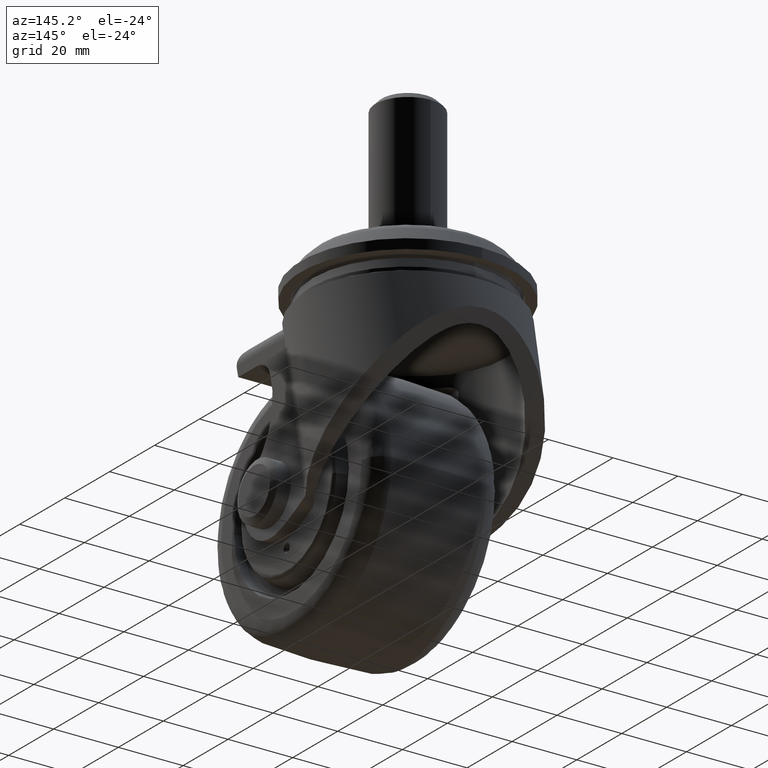
[diagram: clean part render]
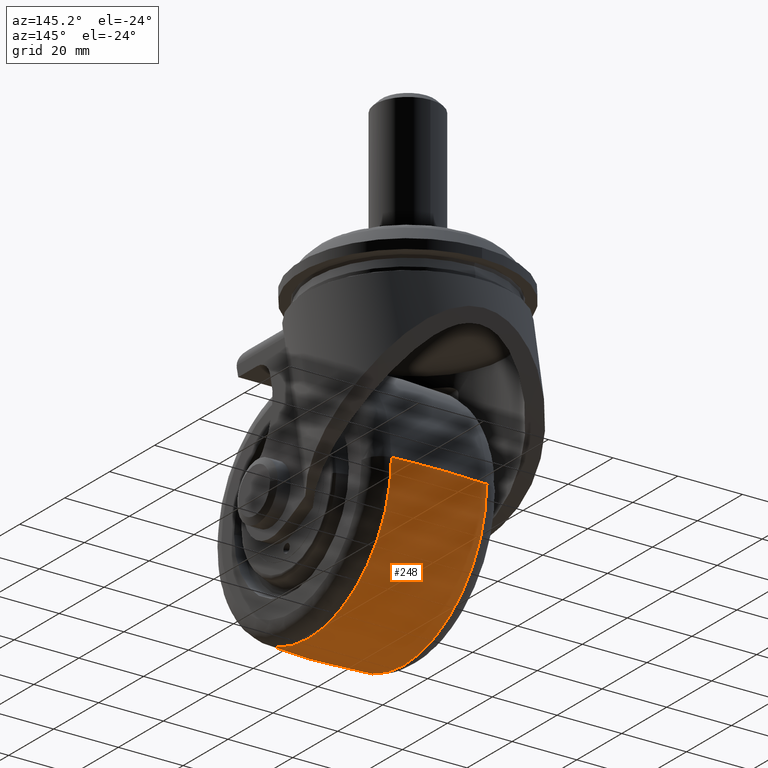
[diagram: same view with one face highlighted and labeled with its STEP entity id]
A machine part, auxiliary view. The second image highlights one B-rep face of the part: STEP entity #248.
In plain terms, the highlighted face is a freeform B-spline surface patch.
Its self-contained STEP definition (entity closure, byte-faithful):
#248=ADVANCED_FACE('',(#1664),#1663,.T.);
#1663=( BOUNDED_SURFACE() B_SPLINE_SURFACE( 2,2,((#3236,#3237,#3238,#3239,#3240),(#3241,#3242,#3243,#3244,#3245),(#3246,#3247,#3248,#3249,#3250)), .UNSPECIFIED.,.F.,.F.,.F.) B_SPLINE_SURFACE_WITH_KNOTS((3,3),(3,2,3),(-8.51603671821E-02,8.51603652339E-02),(3.14159265359E+00,4.71238898038E+00,6.28318530718E+00), .UNSPECIFIED. ) GEOMETRIC_REPRESENTATION_ITEM() RATIONAL_B_SPLINE_SURFACE(((1.00000000000E+00,7.07106781187E-01,1.00000000000E+00,7.07106781187E-01,1.00000000000E+00),(9.96376046971E-01,7.04544259425E-01,9.96376046971E-01,7.04544259425E-01,9.96376046971E-01),(1.00000000000E+00,7.07106781187E-01,1.00000000000E+00,7.07106781187E-01,1.00000000000E+00))) REPRESENTATION_ITEM('') SURFACE() );
#1664=FACE_OUTER_BOUND('',#3251,.T.);
#3236=CARTESIAN_POINT('',(-1.47214851922E+01,-4.51546374202E-15,-3.68727773453E+01));
#3237=CARTESIAN_POINT('',(-1.47214851922E+01,-3.68727773453E+01,-3.68727773453E+01));
#3238=CARTESIAN_POINT('',(-1.47214851922E+01,-3.68727773453E+01,4.51546374202E-15));
#3239=CARTESIAN_POINT('',(-1.47214851922E+01,-3.68727773453E+01,3.68727773453E+01));
#3240=CARTESIAN_POINT('',(-1.47214851922E+01,4.51546374202E-15,3.68727773453E+01));
#3241=CARTESIAN_POINT('',(-1.69200719213E-07,-4.66936327845E-15,-3.81295039330E+01));
#3242=CARTESIAN_POINT('',(-1.69200719213E-07,-3.81295039330E+01,-3.81295039330E+01));
#3243=CARTESIAN_POINT('',(-1.69200719213E-07,-3.81295039330E+01,4.66936327845E-15));
#3244=CARTESIAN_POINT('',(-1.69200719213E-07,-3.81295039330E+01,3.81295039330E+01));
#3245=CARTESIAN_POINT('',(-1.69200719213E-07,4.66936327845E-15,3.81295039330E+01));
#3246=CARTESIAN_POINT('',(1.47214848563E+01,-4.51546374553E-15,-3.68727773740E+01));
#3247=CARTESIAN_POINT('',(1.47214848563E+01,-3.68727773740E+01,-3.68727773740E+01));
#3248=CARTESIAN_POINT('',(1.47214848563E+01,-3.68727773740E+01,4.51546374553E-15));
#3249=CARTESIAN_POINT('',(1.47214848563E+01,-3.68727773740E+01,3.68727773740E+01));
#3250=CARTESIAN_POINT('',(1.47214848563E+01,4.51546374553E-15,3.68727773740E+01));
#3251=EDGE_LOOP('',(#4228,#4229,#4230,#4231));
#4228=ORIENTED_EDGE('',*,*,#4672,.F.);
#4229=ORIENTED_EDGE('',*,*,#4676,.F.);
#4230=ORIENTED_EDGE('',*,*,#4678,.T.);
#4231=ORIENTED_EDGE('',*,*,#4677,.T.);
#4672=EDGE_CURVE('',#6843,#6850,#6851,.T.);
#4676=EDGE_CURVE('',#6870,#6843,#6877,.T.);
#4677=EDGE_CURVE('',#6869,#6850,#6883,.T.);
#4678=EDGE_CURVE('',#6870,#6869,#6889,.T.);
#6843=VERTEX_POINT('',#8779);
#6850=VERTEX_POINT('',#8783);
#6851=CIRCLE('',#8787,3.68727773740E+01);
#6869=VERTEX_POINT('',#8797);
#6870=VERTEX_POINT('',#8798);
#6877=(BOUNDED_CURVE() B_SPLINE_CURVE(2,(#8803,#8804,#8805),.UNSPECIFIED.,.F.,.F.) B_SPLINE_CURVE_WITH_KNOTS((3,3),(-8.51603671821E-02,8.51603652339E-02),.UNSPECIFIED.) CURVE() GEOMETRIC_REPRESENTATION_ITEM() RATIONAL_B_SPLINE_CURVE((1.00000000000E+00,9.96376046971E-01,1.00000000000E+00)) REPRESENTATION_ITEM('') );
#6883=(BOUNDED_CURVE() B_SPLINE_CURVE(2,(#8806,#8807,#8808),.UNSPECIFIED.,.F.,.F.) B_SPLINE_CURVE_WITH_KNOTS((3,3),(-8.51603671821E-02,8.51603652339E-02),.UNSPECIFIED.) CURVE() GEOMETRIC_REPRESENTATION_ITEM() RATIONAL_B_SPLINE_CURVE((1.00000000000E+00,9.96376046971E-01,1.00000000000E+00)) REPRESENTATION_ITEM('') );
#6889=CIRCLE('',#8812,3.68727773453E+01);
#8779=CARTESIAN_POINT('',(1.47214848563E+01,2.36847578587E-15,3.68727773740E+01));
#8783=CARTESIAN_POINT('',(1.47214848563E+01,0.00000000000E+00,-3.68727773740E+01));
#8784=CARTESIAN_POINT('',(1.47214848563E+01,0.00000000000E+00,0.00000000000E+00));
#8785=DIRECTION('',(1.00000000000E+00,0.00000000000E+00,0.00000000000E+00));
#8786=DIRECTION('',(0.00000000000E+00,-1.22460635382E-16,-1.00000000000E+00));
#8787=AXIS2_PLACEMENT_3D('',#8784,#8785,#8786);
#8797=CARTESIAN_POINT('',(-1.47214851922E+01,0.00000000000E+00,-3.68727773453E+01));
#8798=CARTESIAN_POINT('',(-1.47214851922E+01,2.36847578587E-15,3.68727773453E+01));
#8803=CARTESIAN_POINT('',(-1.47214851922E+01,4.51546374202E-15,3.68727773453E+01));
#8804=CARTESIAN_POINT('',(-1.69200719213E-07,4.66936327845E-15,3.81295039330E+01));
#8805=CARTESIAN_POINT('',(1.47214848563E+01,4.51546374553E-15,3.68727773740E+01));
#8806=CARTESIAN_POINT('',(-1.47214851922E+01,-4.51546374202E-15,-3.68727773453E+01));
#8807=CARTESIAN_POINT('',(-1.69200719213E-07,-4.66936327845E-15,-3.81295039330E+01));
#8808=CARTESIAN_POINT('',(1.47214848563E+01,-4.51546374553E-15,-3.68727773740E+01));
#8809=CARTESIAN_POINT('',(-1.47214851922E+01,0.00000000000E+00,0.00000000000E+00));
#8810=DIRECTION('',(1.00000000000E+00,0.00000000000E+00,0.00000000000E+00));
#8811=DIRECTION('',(0.00000000000E+00,-1.22460635382E-16,-1.00000000000E+00));
#8812=AXIS2_PLACEMENT_3D('',#8809,#8810,#8811);